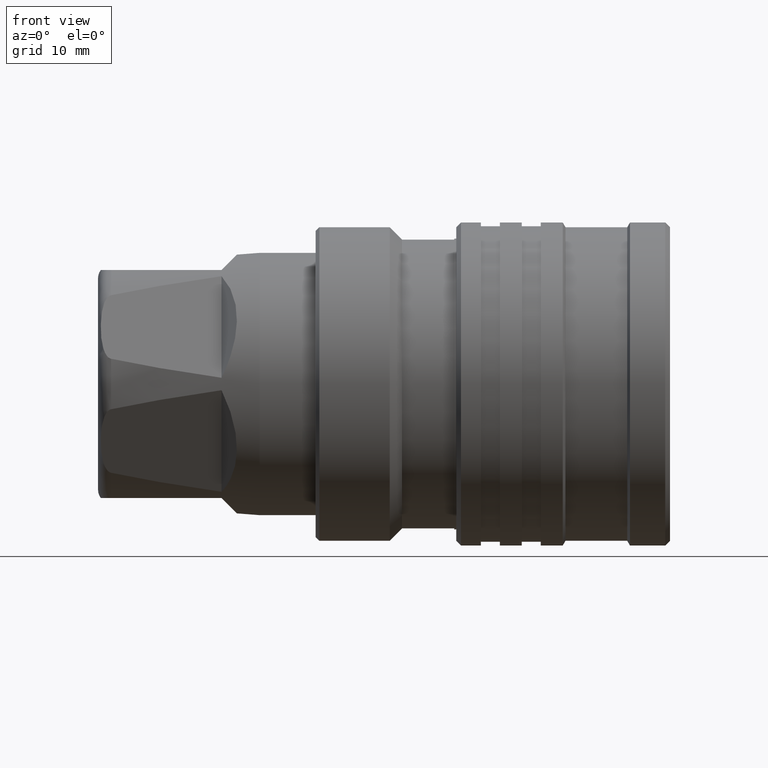
[diagram: clean part render]
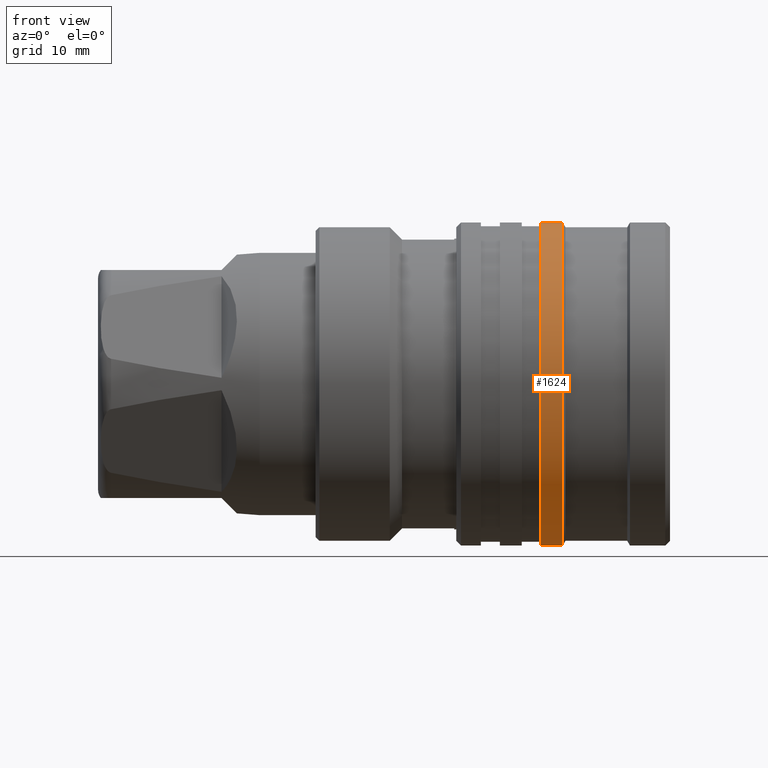
[diagram: same view with one face highlighted and labeled with its STEP entity id]
A machine part, front view. The second image highlights one B-rep face of the part: STEP entity #1624.
In plain terms, the highlighted cylindrical surface (partial cylindrical patch) has radius 17 mm, axis along (-1, 0, 0).
Its self-contained STEP definition (entity closure, byte-faithful):
#30 = CIRCLE ( 'NONE', #187, 16.99999999999580100 ) ;
#68 = AXIS2_PLACEMENT_3D ( 'NONE', #3462, #3465, #3464 ) ;
#187 = AXIS2_PLACEMENT_3D ( 'NONE', #4059, #4082, #4100 ) ;
#228 = AXIS2_PLACEMENT_3D ( 'NONE', #3855, #3854, #3857 ) ;
#354 = DIRECTION ( 'NONE',  ( -1.000000000000000000, 0.0000000000000000000, 0.0000000000000000000 ) ) ;
#355 = CARTESIAN_POINT ( 'NONE',  ( 76.95419073289978900, 2.081899558549986300E-015, -16.99999999999580100 ) ) ;
#463 = DIRECTION ( 'NONE',  ( -1.000000000000000000, 0.0000000000000000000, 0.0000000000000000000 ) ) ;
#464 = CARTESIAN_POINT ( 'NONE',  ( 76.95419073289978900, 0.0000000000000000000, 16.99999999999580100 ) ) ;
#680 = EDGE_LOOP ( 'NONE', ( #915, #914, #909, #907 ) ) ;
#907 = ORIENTED_EDGE ( 'NONE', *, *, #1736, .F. ) ;
#909 = ORIENTED_EDGE ( 'NONE', *, *, #4268, .T. ) ;
#914 = ORIENTED_EDGE ( 'NONE', *, *, #1693, .T. ) ;
#915 = ORIENTED_EDGE ( 'NONE', *, *, #4266, .F. ) ;
#1341 = CARTESIAN_POINT ( 'NONE',  ( 48.91132486539800100, 0.0000000000000000000, 16.99999999999580100 ) ) ;
#1483 = CIRCLE ( 'NONE', #228, 16.99999999999580100 ) ;
#1624 = ADVANCED_FACE ( 'NONE', ( #4688 ), #4466, .T. ) ;
#1693 = EDGE_CURVE ( 'NONE', #3395, #1774, #30, .T. ) ;
#1736 = EDGE_CURVE ( 'NONE', #3213, #3491, #1483, .T. ) ;
#1774 = VERTEX_POINT ( 'NONE', #1341 ) ;
#1830 = VECTOR ( 'NONE', #463, 1000.000000000000000 ) ;
#1832 = LINE ( 'NONE', #464, #1830 ) ;
#1839 = VECTOR ( 'NONE', #354, 1000.000000000000000 ) ;
#1871 = LINE ( 'NONE', #355, #1839 ) ;
#1991 = CARTESIAN_POINT ( 'NONE',  ( 46.59999999999300300, 0.0000000000000000000, 16.99999999999580100 ) ) ;
#2061 = CARTESIAN_POINT ( 'NONE',  ( 48.91132486539800100, 2.081899558549986300E-015, -16.99999999999580100 ) ) ;
#2656 = CARTESIAN_POINT ( 'NONE',  ( 46.59999999999300300, 2.081899558549986300E-015, -16.99999999999580100 ) ) ;
#3213 = VERTEX_POINT ( 'NONE', #2656 ) ;
#3395 = VERTEX_POINT ( 'NONE', #2061 ) ;
#3462 = CARTESIAN_POINT ( 'NONE',  ( 76.95419073289978900, 0.0000000000000000000, 0.0000000000000000000 ) ) ;
#3464 = DIRECTION ( 'NONE',  ( 0.0000000000000000000, 0.0000000000000000000, 1.000000000000000000 ) ) ;
#3465 = DIRECTION ( 'NONE',  ( -1.000000000000000000, 0.0000000000000000000, 0.0000000000000000000 ) ) ;
#3491 = VERTEX_POINT ( 'NONE', #1991 ) ;
#3854 = DIRECTION ( 'NONE',  ( -1.000000000000000000, 0.0000000000000000000, 0.0000000000000000000 ) ) ;
#3855 = CARTESIAN_POINT ( 'NONE',  ( 46.59999999999300300, 0.0000000000000000000, 0.0000000000000000000 ) ) ;
#3857 = DIRECTION ( 'NONE',  ( 0.0000000000000000000, 0.0000000000000000000, 1.000000000000000000 ) ) ;
#4059 = CARTESIAN_POINT ( 'NONE',  ( 48.91132486539800100, 0.0000000000000000000, 0.0000000000000000000 ) ) ;
#4082 = DIRECTION ( 'NONE',  ( -1.000000000000000000, 0.0000000000000000000, 0.0000000000000000000 ) ) ;
#4100 = DIRECTION ( 'NONE',  ( 0.0000000000000000000, 0.0000000000000000000, 1.000000000000000000 ) ) ;
#4266 = EDGE_CURVE ( 'NONE', #3395, #3213, #1871, .T. ) ;
#4268 = EDGE_CURVE ( 'NONE', #1774, #3491, #1832, .T. ) ;
#4466 = CYLINDRICAL_SURFACE ( 'NONE', #68, 16.99999999999580100 ) ;
#4688 = FACE_OUTER_BOUND ( 'NONE', #680, .T. ) ;